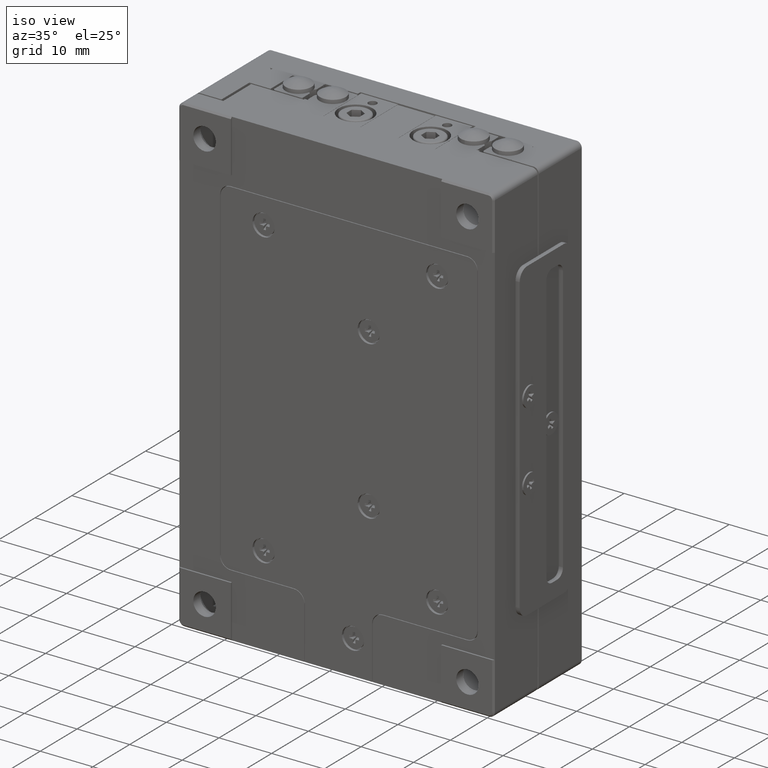
[diagram: clean part render]
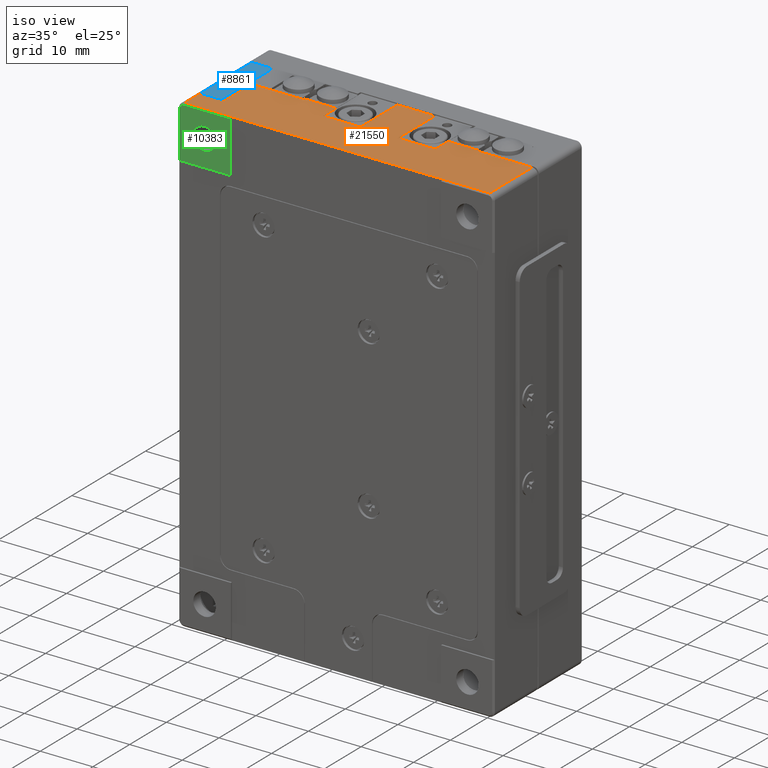
[diagram: same view with three faces highlighted in distinct colors, each labeled with its STEP entity id]
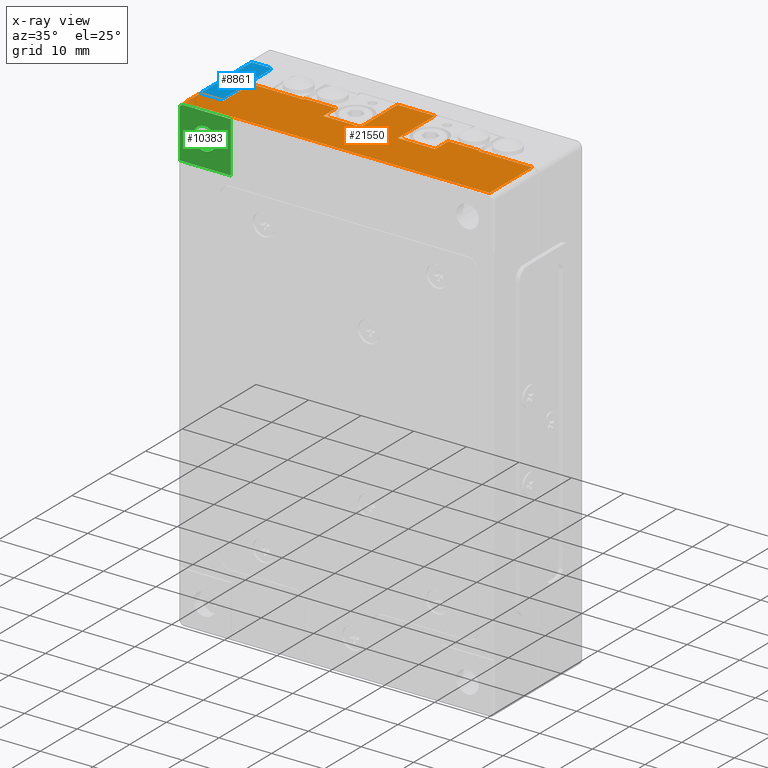
[diagram: x-ray of the same camera — body ghosted, the three highlighted faces saturated]
A machine part, iso view with three faces highlighted in distinct colors.
The next image is the same camera in x-ray (body ghosted, the three faces saturated) — at least one of them is partly hidden behind the body in this view.
Their STEP definitions:

[orange] entity #21550 — the highlighted planar face has unit normal (0, 0, -1).
#41 = DIRECTION ( 'NONE',  ( 0.000000000000000000, 1.000000000000000000, 0.000000000000000000 ) ) ;
#58 = VERTEX_POINT ( 'NONE', #18189 ) ;
#564 = LINE ( 'NONE', #9706, #5444 ) ;
#570 = LINE ( 'NONE', #10872, #5280 ) ;
#799 = VECTOR ( 'NONE', #5479, 1000.000000000000000 ) ;
#1006 = CARTESIAN_POINT ( 'NONE',  ( 48.80000000000000426, 11.59999999999999964, 0.000000000000000000 ) ) ;
#1145 = CARTESIAN_POINT ( 'NONE',  ( 59.00000000000000000, 0.000000000000000000, 0.000000000000000000 ) ) ;
#1394 = CARTESIAN_POINT ( 'NONE',  ( 15.50000000000000000, 11.59999999999999964, 0.000000000000000000 ) ) ;
#1398 = ORIENTED_EDGE ( 'NONE', *, *, #16340, .F. ) ;
#1499 = CARTESIAN_POINT ( 'NONE',  ( 42.79999999999999716, 11.90000000000000036, 0.000000000000000000 ) ) ;
#1723 = VERTEX_POINT ( 'NONE', #20619 ) ;
#1796 = CARTESIAN_POINT ( 'NONE',  ( 42.79999999999999716, 8.400000000000000355, -8.694992273946199858E-16 ) ) ;
#1806 = ORIENTED_EDGE ( 'NONE', *, *, #15400, .F. ) ;
#2213 = CARTESIAN_POINT ( 'NONE',  ( 0.000000000000000000, 0.000000000000000000, 0.000000000000000000 ) ) ;
#2290 = VERTEX_POINT ( 'NONE', #10191 ) ;
#2571 = ORIENTED_EDGE ( 'NONE', *, *, #11701, .T. ) ;
#2604 = ORIENTED_EDGE ( 'NONE', *, *, #11564, .T. ) ;
#2782 = VERTEX_POINT ( 'NONE', #11103 ) ;
#2842 = EDGE_CURVE ( 'NONE', #19836, #23941, #26121, .T. ) ;
#2955 = VECTOR ( 'NONE', #24347, 1000.000000000000000 ) ;
#3142 = EDGE_CURVE ( 'NONE', #7183, #5017, #21053, .T. ) ;
#3312 = ORIENTED_EDGE ( 'NONE', *, *, #25575, .T. ) ;
#3602 = LINE ( 'NONE', #1499, #5015 ) ;
#4140 = CARTESIAN_POINT ( 'NONE',  ( 48.80000000000000426, 11.59999999999999964, 0.000000000000000000 ) ) ;
#4167 = FACE_OUTER_BOUND ( 'NONE', #15299, .T. ) ;
#4395 = ORIENTED_EDGE ( 'NONE', *, *, #4515, .T. ) ;
#4416 = DIRECTION ( 'NONE',  ( 0.000000000000000000, 1.000000000000000000, 0.000000000000000000 ) ) ;
#4515 = EDGE_CURVE ( 'NONE', #58, #10244, #20656, .T. ) ;
#4802 = VECTOR ( 'NONE', #26941, 1000.000000000000000 ) ;
#5015 = VECTOR ( 'NONE', #24972, 1000.000000000000000 ) ;
#5017 = VERTEX_POINT ( 'NONE', #16515 ) ;
#5107 = CARTESIAN_POINT ( 'NONE',  ( 21.50000000000000000, 8.400000000000000355, 7.204041220907209947E-16 ) ) ;
#5280 = VECTOR ( 'NONE', #11422, 1000.000000000000000 ) ;
#5444 = VECTOR ( 'NONE', #7593, 1000.000000000000000 ) ;
#5479 = DIRECTION ( 'NONE',  ( 1.000000000000000000, 0.000000000000000000, -2.239300492232875162E-16 ) ) ;
#5503 = CARTESIAN_POINT ( 'NONE',  ( 15.50000000000000000, 11.90000000000000036, 0.000000000000000000 ) ) ;
#5521 = DIRECTION ( 'NONE',  ( 0.000000000000000000, -1.000000000000000000, 0.000000000000000000 ) ) ;
#5611 = VECTOR ( 'NONE', #5521, 1000.000000000000000 ) ;
#5737 = VECTOR ( 'NONE', #25130, 1000.000000000000000 ) ;
#5835 = CARTESIAN_POINT ( 'NONE',  ( 21.50000000000000000, 8.400000000000000355, 7.204041220907209947E-16 ) ) ;
#6078 = AXIS2_PLACEMENT_3D ( 'NONE', #2213, #14880, #16994 ) ;
#6705 = PLANE ( 'NONE',  #6078 ) ;
#7021 = CARTESIAN_POINT ( 'NONE',  ( 59.00000000000000000, 11.59999999999999964, 0.000000000000000000 ) ) ;
#7069 = EDGE_CURVE ( 'NONE', #10244, #10368, #564, .T. ) ;
#7183 = VERTEX_POINT ( 'NONE', #16453 ) ;
#7342 = VECTOR ( 'NONE', #26106, 1000.000000000000000 ) ;
#7567 = EDGE_CURVE ( 'NONE', #19516, #22170, #24293, .T. ) ;
#7593 = DIRECTION ( 'NONE',  ( -1.000000000000000000, 0.000000000000000000, 0.000000000000000000 ) ) ;
#7814 = VERTEX_POINT ( 'NONE', #16829 ) ;
#7933 = LINE ( 'NONE', #5835, #12370 ) ;
#8321 = CARTESIAN_POINT ( 'NONE',  ( 21.50000000000000000, 18.39999999999999858, 0.000000000000000000 ) ) ;
#8750 = LINE ( 'NONE', #25764, #27241 ) ;
#8953 = CARTESIAN_POINT ( 'NONE',  ( 0.9999999999854640720, 4.000000000000000000, 2.709638069475775509E-12 ) ) ;
#9342 = CARTESIAN_POINT ( 'NONE',  ( 1.000000000000000000, -0.2999999999999999889, 0.000000000000000000 ) ) ;
#9663 = CARTESIAN_POINT ( 'NONE',  ( 60.00000000000000000, 0.000000000000000000, 0.000000000000000000 ) ) ;
#9706 = CARTESIAN_POINT ( 'NONE',  ( 7.129999999999999893, 11.59999999999999964, 0.000000000000000000 ) ) ;
#9981 = DIRECTION ( 'NONE',  ( -1.734723475976805201E-14, -1.000000000000000000, 0.000000000000000000 ) ) ;
#10014 = CARTESIAN_POINT ( 'NONE',  ( 1.000000000000000000, -5.258380536554699660E-15, 0.000000000000000000 ) ) ;
#10191 = CARTESIAN_POINT ( 'NONE',  ( 35.70000000000000284, 8.400000000000000355, 0.000000000000000000 ) ) ;
#10244 = VERTEX_POINT ( 'NONE', #20961 ) ;
#10320 = LINE ( 'NONE', #8321, #12398 ) ;
#10368 = VERTEX_POINT ( 'NONE', #10849 ) ;
#10849 = CARTESIAN_POINT ( 'NONE',  ( 5.549999999985169907, 11.59999999999999964, 2.661065812148420063E-12 ) ) ;
#10872 = CARTESIAN_POINT ( 'NONE',  ( 59.00000000000000000, -1.509929076399594927E-28, 0.000000000000000000 ) ) ;
#10940 = ORIENTED_EDGE ( 'NONE', *, *, #7567, .T. ) ;
#11084 = EDGE_CURVE ( 'NONE', #24372, #5017, #3602, .T. ) ;
#11103 = CARTESIAN_POINT ( 'NONE',  ( 21.50000000000000000, 11.90000000000000036, 7.204041220907209947E-16 ) ) ;
#11142 = CARTESIAN_POINT ( 'NONE',  ( 48.80000000000000426, 11.90000000000000036, 0.000000000000000000 ) ) ;
#11144 = VERTEX_POINT ( 'NONE', #4140 ) ;
#11422 = DIRECTION ( 'NONE',  ( 1.000000000000000000, 0.000000000000000000, 0.000000000000000000 ) ) ;
#11532 = VECTOR ( 'NONE', #41, 1000.000000000000000 ) ;
#11564 = EDGE_CURVE ( 'NONE', #24061, #19516, #8750, .T. ) ;
#11645 = EDGE_CURVE ( 'NONE', #11144, #24372, #14947, .T. ) ;
#11701 = EDGE_CURVE ( 'NONE', #13117, #11144, #20268, .T. ) ;
#12293 = VECTOR ( 'NONE', #24154, 1000.000000000000000 ) ;
#12323 = CARTESIAN_POINT ( 'NONE',  ( 5.549999999985169907, 4.000000000000000000, 2.661065812148420063E-12 ) ) ;
#12370 = VECTOR ( 'NONE', #25235, 1000.000000000000000 ) ;
#12398 = VECTOR ( 'NONE', #25470, 1000.000000000000000 ) ;
#12796 = EDGE_CURVE ( 'NONE', #22170, #22611, #570, .T. ) ;
#12907 = VERTEX_POINT ( 'NONE', #17038 ) ;
#12968 = ORIENTED_EDGE ( 'NONE', *, *, #22200, .T. ) ;
#13117 = VERTEX_POINT ( 'NONE', #7021 ) ;
#13448 = VECTOR ( 'NONE', #9981, 1000.000000000000000 ) ;
#13655 = LINE ( 'NONE', #27010, #799 ) ;
#14089 = ORIENTED_EDGE ( 'NONE', *, *, #20518, .F. ) ;
#14394 = CARTESIAN_POINT ( 'NONE',  ( 28.60000000000000142, 8.400000000000000355, -6.245698675651510700E-16 ) ) ;
#14874 = ORIENTED_EDGE ( 'NONE', *, *, #3142, .F. ) ;
#14880 = DIRECTION ( 'NONE',  ( 0.000000000000000000, 0.000000000000000000, -1.000000000000000000 ) ) ;
#14947 = LINE ( 'NONE', #19303, #11532 ) ;
#15106 = LINE ( 'NONE', #18916, #15273 ) ;
#15246 = LINE ( 'NONE', #5503, #27763 ) ;
#15273 = VECTOR ( 'NONE', #4416, 1000.000000000000000 ) ;
#15299 = EDGE_LOOP ( 'NONE', ( #1398, #16687, #3312, #26496, #14089, #25027, #25840, #4395, #18701, #1806, #19783, #12968, #2604, #10940, #16490, #26839, #2571, #25777, #22093, #14874 ) ) ;
#15308 = CARTESIAN_POINT ( 'NONE',  ( 28.60000000000000142, 8.400000000000000355, -6.245698675651510700E-16 ) ) ;
#15400 = EDGE_CURVE ( 'NONE', #17395, #10368, #26949, .T. ) ;
#15806 = LINE ( 'NONE', #9342, #5611 ) ;
#16340 = EDGE_CURVE ( 'NONE', #2290, #7183, #13655, .T. ) ;
#16453 = CARTESIAN_POINT ( 'NONE',  ( 42.79999999999999716, 8.400000000000000355, -8.694992273946199858E-16 ) ) ;
#16490 = ORIENTED_EDGE ( 'NONE', *, *, #12796, .T. ) ;
#16515 = CARTESIAN_POINT ( 'NONE',  ( 42.79999999999999716, 11.90000000000000036, -8.694992273946199858E-16 ) ) ;
#16687 = ORIENTED_EDGE ( 'NONE', *, *, #16913, .T. ) ;
#16829 = CARTESIAN_POINT ( 'NONE',  ( 21.50000000000000000, 8.400000000000000355, 0.000000000000000000 ) ) ;
#16913 = EDGE_CURVE ( 'NONE', #2290, #1723, #15106, .T. ) ;
#16994 = DIRECTION ( 'NONE',  ( 0.000000000000000000, -1.000000000000000000, 0.000000000000000000 ) ) ;
#17038 = CARTESIAN_POINT ( 'NONE',  ( 0.9999999999854640720, 4.000000000000000000, 2.709638069475775509E-12 ) ) ;
#17395 = VERTEX_POINT ( 'NONE', #26397 ) ;
#18189 = CARTESIAN_POINT ( 'NONE',  ( 15.50000000000000000, 11.90000000000000036, 0.000000000000000000 ) ) ;
#18249 = VECTOR ( 'NONE', #24903, 1000.000000000000000 ) ;
#18579 = CARTESIAN_POINT ( 'NONE',  ( 59.00000000000000000, 11.59999999999999964, 0.000000000000000000 ) ) ;
#18701 = ORIENTED_EDGE ( 'NONE', *, *, #7069, .T. ) ;
#18916 = CARTESIAN_POINT ( 'NONE',  ( 35.70000000000000284, 8.400000000000000355, 7.204041220907209947E-16 ) ) ;
#19303 = CARTESIAN_POINT ( 'NONE',  ( 48.80000000000000426, 11.90000000000000036, 0.000000000000000000 ) ) ;
#19362 = LINE ( 'NONE', #8953, #7342 ) ;
#19516 = VERTEX_POINT ( 'NONE', #21423 ) ;
#19723 = CARTESIAN_POINT ( 'NONE',  ( 28.60000000000000142, 18.39999999999999858, -6.245698675651510700E-16 ) ) ;
#19783 = ORIENTED_EDGE ( 'NONE', *, *, #26532, .F. ) ;
#19836 = VERTEX_POINT ( 'NONE', #14394 ) ;
#19849 = EDGE_CURVE ( 'NONE', #22611, #13117, #20823, .T. ) ;
#20268 = LINE ( 'NONE', #1006, #2955 ) ;
#20518 = EDGE_CURVE ( 'NONE', #7814, #19836, #24808, .T. ) ;
#20619 = CARTESIAN_POINT ( 'NONE',  ( 35.70000000000000284, 18.39999999999999858, 7.204041220907209947E-16 ) ) ;
#20656 = LINE ( 'NONE', #1394, #13448 ) ;
#20823 = LINE ( 'NONE', #18579, #18249 ) ;
#20885 = EDGE_CURVE ( 'NONE', #2782, #58, #15246, .T. ) ;
#20961 = CARTESIAN_POINT ( 'NONE',  ( 15.50000000000000000, 11.59999999999999964, 0.000000000000000000 ) ) ;
#21053 = LINE ( 'NONE', #1796, #5737 ) ;
#21423 = CARTESIAN_POINT ( 'NONE',  ( 10.00000000000000000, 0.000000000000000000, 0.000000000000000000 ) ) ;
#21550 = ADVANCED_FACE ( 'NONE', ( #4167 ), #6705, .F. ) ;
#22093 = ORIENTED_EDGE ( 'NONE', *, *, #11084, .T. ) ;
#22170 = VERTEX_POINT ( 'NONE', #26084 ) ;
#22200 = EDGE_CURVE ( 'NONE', #12907, #24061, #15806, .T. ) ;
#22611 = VERTEX_POINT ( 'NONE', #1145 ) ;
#22853 = DIRECTION ( 'NONE',  ( 0.000000000000000000, 1.000000000000000000, 0.000000000000000000 ) ) ;
#23514 = DIRECTION ( 'NONE',  ( 1.000000000000000000, 0.000000000000000000, 0.000000000000000000 ) ) ;
#23941 = VERTEX_POINT ( 'NONE', #19723 ) ;
#24061 = VERTEX_POINT ( 'NONE', #10014 ) ;
#24154 = DIRECTION ( 'NONE',  ( 0.000000000000000000, 1.000000000000000000, 0.000000000000000000 ) ) ;
#24293 = LINE ( 'NONE', #9663, #26608 ) ;
#24347 = DIRECTION ( 'NONE',  ( -1.000000000000000000, 0.000000000000000000, 0.000000000000000000 ) ) ;
#24372 = VERTEX_POINT ( 'NONE', #11142 ) ;
#24575 = DIRECTION ( 'NONE',  ( 1.000000000000000000, 0.000000000000000000, 0.000000000000000000 ) ) ;
#24808 = LINE ( 'NONE', #5107, #4802 ) ;
#24903 = DIRECTION ( 'NONE',  ( 0.000000000000000000, 1.000000000000000000, 0.000000000000000000 ) ) ;
#24972 = DIRECTION ( 'NONE',  ( -1.000000000000000000, 0.000000000000000000, 0.000000000000000000 ) ) ;
#25023 = EDGE_CURVE ( 'NONE', #7814, #2782, #7933, .T. ) ;
#25027 = ORIENTED_EDGE ( 'NONE', *, *, #25023, .T. ) ;
#25130 = DIRECTION ( 'NONE',  ( 0.000000000000000000, 1.000000000000000000, 0.000000000000000000 ) ) ;
#25235 = DIRECTION ( 'NONE',  ( 0.000000000000000000, 1.000000000000000000, 0.000000000000000000 ) ) ;
#25470 = DIRECTION ( 'NONE',  ( -1.000000000000000000, 0.000000000000000000, 0.000000000000000000 ) ) ;
#25575 = EDGE_CURVE ( 'NONE', #1723, #23941, #10320, .T. ) ;
#25764 = CARTESIAN_POINT ( 'NONE',  ( 10.00000000000000000, -1.509929076399594927E-28, 0.000000000000000000 ) ) ;
#25777 = ORIENTED_EDGE ( 'NONE', *, *, #11645, .T. ) ;
#25840 = ORIENTED_EDGE ( 'NONE', *, *, #20885, .T. ) ;
#26084 = CARTESIAN_POINT ( 'NONE',  ( 50.00000000000000000, 0.000000000000000000, -1.224646799147351876E-15 ) ) ;
#26106 = DIRECTION ( 'NONE',  ( 1.000000000000000000, 0.000000000000000000, -1.067522139062720012E-14 ) ) ;
#26121 = LINE ( 'NONE', #15308, #12293 ) ;
#26397 = CARTESIAN_POINT ( 'NONE',  ( 5.549999999985169907, 4.000000000000000000, 2.661065812148420063E-12 ) ) ;
#26496 = ORIENTED_EDGE ( 'NONE', *, *, #2842, .F. ) ;
#26532 = EDGE_CURVE ( 'NONE', #12907, #17395, #19362, .T. ) ;
#26608 = VECTOR ( 'NONE', #24575, 1000.000000000000000 ) ;
#26612 = DIRECTION ( 'NONE',  ( -1.000000000000000000, 0.000000000000000000, 0.000000000000000000 ) ) ;
#26804 = VECTOR ( 'NONE', #22853, 1000.000000000000000 ) ;
#26839 = ORIENTED_EDGE ( 'NONE', *, *, #19849, .T. ) ;
#26941 = DIRECTION ( 'NONE',  ( 1.000000000000000000, 0.000000000000000000, -1.894329562895594898E-16 ) ) ;
#26949 = LINE ( 'NONE', #12323, #26804 ) ;
#27010 = CARTESIAN_POINT ( 'NONE',  ( 35.70000000000000284, 8.400000000000000355, 7.204041220907209947E-16 ) ) ;
#27241 = VECTOR ( 'NONE', #23514, 1000.000000000000000 ) ;
#27763 = VECTOR ( 'NONE', #26612, 1000.000000000000000 ) ;

[blue] entity #8861 — the highlighted planar face has unit normal (0, -0, 1).
#905 = ORIENTED_EDGE ( 'NONE', *, *, #11643, .F. ) ;
#1413 = PLANE ( 'NONE',  #24015 ) ;
#2669 = LINE ( 'NONE', #24029, #23343 ) ;
#5199 = FACE_OUTER_BOUND ( 'NONE', #11716, .T. ) ;
#5840 = EDGE_CURVE ( 'NONE', #15778, #22101, #12543, .T. ) ;
#6185 = VECTOR ( 'NONE', #18886, 1000.000000000000000 ) ;
#7458 = CARTESIAN_POINT ( 'NONE',  ( 56.25000000000000000, -30.00000000000000000, 6.924999999999999822 ) ) ;
#7640 = VERTEX_POINT ( 'NONE', #27111 ) ;
#8488 = CARTESIAN_POINT ( 'NONE',  ( 56.25000000000000000, -25.00000000000000000, 6.924999999999999822 ) ) ;
#8861 = ADVANCED_FACE ( 'NONE', ( #5199 ), #1413, .T. ) ;
#10067 = VERTEX_POINT ( 'NONE', #15521 ) ;
#10619 = VECTOR ( 'NONE', #17915, 1000.000000000000114 ) ;
#11133 = DIRECTION ( 'NONE',  ( 0.000000000000000000, 1.000000000000000000, 0.000000000000000000 ) ) ;
#11204 = CARTESIAN_POINT ( 'NONE',  ( 56.25000000000000000, -29.00000000000000000, -6.975000000000000533 ) ) ;
#11643 = EDGE_CURVE ( 'NONE', #10067, #27428, #27767, .T. ) ;
#11716 = EDGE_LOOP ( 'NONE', ( #17556, #24932, #25066, #905, #24341 ) ) ;
#11738 = CARTESIAN_POINT ( 'NONE',  ( 56.25000000000000000, -29.00000000000000000, 6.924999999999999822 ) ) ;
#11841 = DIRECTION ( 'NONE',  ( 0.000000000000000000, 1.000000000000000000, 0.000000000000000000 ) ) ;
#12390 = VECTOR ( 'NONE', #20663, 1000.000000000000000 ) ;
#12543 = LINE ( 'NONE', #22631, #12390 ) ;
#14669 = LINE ( 'NONE', #27749, #6185 ) ;
#15521 = CARTESIAN_POINT ( 'NONE',  ( 56.25000000000000000, -25.00000000000000000, 6.424999999999999822 ) ) ;
#15778 = VERTEX_POINT ( 'NONE', #11738 ) ;
#16038 = DIRECTION ( 'NONE',  ( 1.000000000000000000, 0.000000000000000000, 0.000000000000000000 ) ) ;
#16045 = EDGE_CURVE ( 'NONE', #15778, #7640, #14669, .T. ) ;
#17066 = DIRECTION ( 'NONE',  ( 0.000000000000000000, 0.000000000000000000, -1.000000000000000000 ) ) ;
#17556 = ORIENTED_EDGE ( 'NONE', *, *, #16045, .F. ) ;
#17915 = DIRECTION ( 'NONE',  ( 0.000000000000000000, -0.7071067811865474617, 0.7071067811865474617 ) ) ;
#18128 = EDGE_CURVE ( 'NONE', #22101, #27428, #2669, .T. ) ;
#18886 = DIRECTION ( 'NONE',  ( 0.000000000000000000, 1.000000000000000000, 0.000000000000000000 ) ) ;
#19293 = CARTESIAN_POINT ( 'NONE',  ( 56.25000000000000000, -25.00000000000000000, -6.975000000000000533 ) ) ;
#19572 = VECTOR ( 'NONE', #17066, 1000.000000000000000 ) ;
#20574 = CARTESIAN_POINT ( 'NONE',  ( 56.25000000000000000, -27.75000000000000000, 9.175000000000000711 ) ) ;
#20663 = DIRECTION ( 'NONE',  ( 0.000000000000000000, 0.000000000000000000, -1.000000000000000000 ) ) ;
#22101 = VERTEX_POINT ( 'NONE', #11204 ) ;
#22631 = CARTESIAN_POINT ( 'NONE',  ( 56.25000000000000000, -29.00000000000000000, -6.975000000000000533 ) ) ;
#23343 = VECTOR ( 'NONE', #11133, 1000.000000000000000 ) ;
#24015 = AXIS2_PLACEMENT_3D ( 'NONE', #7458, #16038, #11841 ) ;
#24029 = CARTESIAN_POINT ( 'NONE',  ( 56.25000000000000000, -30.00000000000000000, -6.975000000000000533 ) ) ;
#24341 = ORIENTED_EDGE ( 'NONE', *, *, #27164, .T. ) ;
#24932 = ORIENTED_EDGE ( 'NONE', *, *, #5840, .T. ) ;
#25066 = ORIENTED_EDGE ( 'NONE', *, *, #18128, .T. ) ;
#26346 = LINE ( 'NONE', #20574, #10619 ) ;
#27111 = CARTESIAN_POINT ( 'NONE',  ( 56.25000000000000000, -25.50000000000000000, 6.924999999999999822 ) ) ;
#27164 = EDGE_CURVE ( 'NONE', #10067, #7640, #26346, .T. ) ;
#27428 = VERTEX_POINT ( 'NONE', #19293 ) ;
#27749 = CARTESIAN_POINT ( 'NONE',  ( 56.25000000000000000, -30.00000000000000000, 6.924999999999999822 ) ) ;
#27767 = LINE ( 'NONE', #8488, #19572 ) ;

[green] entity #10383 — the highlighted planar face has unit normal (0, -1, 0).
#138 = CARTESIAN_POINT ( 'NONE',  ( 0.000000000000000000, -0.2999999999999999889, 0.000000000000000000 ) ) ;
#723 = CARTESIAN_POINT ( 'NONE',  ( 0.3000000000000084821, -0.2999999999999999889, 0.000000000000000000 ) ) ;
#2099 = AXIS2_PLACEMENT_3D ( 'NONE', #7328, #2700, #17890 ) ;
#2264 = VERTEX_POINT ( 'NONE', #23259 ) ;
#2700 = DIRECTION ( 'NONE',  ( 0.000000000000000000, -1.000000000000000000, 0.000000000000000000 ) ) ;
#2811 = CARTESIAN_POINT ( 'NONE',  ( 10.00000000000000000, -0.2999999999999999889, -0.3000000000000084821 ) ) ;
#3399 = ORIENTED_EDGE ( 'NONE', *, *, #19062, .T. ) ;
#3971 = CARTESIAN_POINT ( 'NONE',  ( 5.000000000000000000, -0.2999999999999999889, -5.000000000000000000 ) ) ;
#4600 = DIRECTION ( 'NONE',  ( 0.000000000000000000, 0.000000000000000000, 1.000000000000000000 ) ) ;
#4700 = EDGE_CURVE ( 'NONE', #19150, #27603, #14002, .T. ) ;
#4708 = DIRECTION ( 'NONE',  ( 1.000000000000000000, 0.000000000000000000, 0.000000000000000000 ) ) ;
#5159 = EDGE_LOOP ( 'NONE', ( #15555, #3399 ) ) ;
#5430 = AXIS2_PLACEMENT_3D ( 'NONE', #138, #9126, #8718 ) ;
#6598 = EDGE_CURVE ( 'NONE', #27603, #15289, #26100, .T. ) ;
#7015 = PLANE ( 'NONE',  #5430 ) ;
#7328 = CARTESIAN_POINT ( 'NONE',  ( 1.000000000000000000, -0.2999999999999999889, -1.000000000000000000 ) ) ;
#7762 = DIRECTION ( 'NONE',  ( 0.000000000000000000, 0.000000000000000000, 1.000000000000000000 ) ) ;
#7952 = EDGE_CURVE ( 'NONE', #21971, #19150, #19630, .T. ) ;
#8718 = DIRECTION ( 'NONE',  ( 0.000000000000000000, 0.000000000000000000, -1.000000000000000000 ) ) ;
#9126 = DIRECTION ( 'NONE',  ( 0.000000000000000000, -1.000000000000000000, 0.000000000000000000 ) ) ;
#9769 = CARTESIAN_POINT ( 'NONE',  ( 10.00000000000000000, -0.2999999999999999889, -10.00000000000000000 ) ) ;
#10383 = ADVANCED_FACE ( 'NONE', ( #10985, #19687 ), #7015, .T. ) ;
#10985 = FACE_OUTER_BOUND ( 'NONE', #25839, .T. ) ;
#11209 = DIRECTION ( 'NONE',  ( 0.000000000000000000, 1.000000000000000000, 0.000000000000000000 ) ) ;
#11222 = CARTESIAN_POINT ( 'NONE',  ( 1.000000000000000000, -0.2999999999999999889, -0.3000000000000084821 ) ) ;
#11715 = EDGE_CURVE ( 'NONE', #15189, #21971, #26745, .T. ) ;
#11789 = EDGE_CURVE ( 'NONE', #15289, #15189, #14238, .T. ) ;
#14002 = LINE ( 'NONE', #22431, #26457 ) ;
#14208 = AXIS2_PLACEMENT_3D ( 'NONE', #3971, #14814, #7762 ) ;
#14238 = CIRCLE ( 'NONE', #2099, 0.6999999999999909628 ) ;
#14335 = AXIS2_PLACEMENT_3D ( 'NONE', #19756, #11209, #21720 ) ;
#14814 = DIRECTION ( 'NONE',  ( 0.000000000000000000, 1.000000000000000000, 0.000000000000000000 ) ) ;
#15127 = ORIENTED_EDGE ( 'NONE', *, *, #11789, .T. ) ;
#15189 = VERTEX_POINT ( 'NONE', #18940 ) ;
#15285 = CARTESIAN_POINT ( 'NONE',  ( 1.000000000000000000, -0.2999999999999999889, -0.3000000000000084821 ) ) ;
#15289 = VERTEX_POINT ( 'NONE', #15285 ) ;
#15413 = DIRECTION ( 'NONE',  ( -1.000000000000000000, 0.000000000000000000, 0.000000000000000000 ) ) ;
#15555 = ORIENTED_EDGE ( 'NONE', *, *, #27297, .T. ) ;
#15798 = VERTEX_POINT ( 'NONE', #16073 ) ;
#16073 = CARTESIAN_POINT ( 'NONE',  ( 5.000000000000000000, -0.2999999999999999889, -2.850000000000000089 ) ) ;
#16736 = VECTOR ( 'NONE', #15413, 1000.000000000000000 ) ;
#16956 = CARTESIAN_POINT ( 'NONE',  ( 0.3000000000000084821, -0.2999999999999999889, -10.00000000000000000 ) ) ;
#17248 = ORIENTED_EDGE ( 'NONE', *, *, #4700, .T. ) ;
#17356 = VECTOR ( 'NONE', #17740, 1000.000000000000000 ) ;
#17740 = DIRECTION ( 'NONE',  ( 0.000000000000000000, 0.000000000000000000, -1.000000000000000000 ) ) ;
#17890 = DIRECTION ( 'NONE',  ( 0.000000000000000000, 0.000000000000000000, -1.000000000000000000 ) ) ;
#18940 = CARTESIAN_POINT ( 'NONE',  ( 0.3000000000000084821, -0.2999999999999999889, -1.000000000000000000 ) ) ;
#19062 = EDGE_CURVE ( 'NONE', #2264, #15798, #26447, .T. ) ;
#19150 = VERTEX_POINT ( 'NONE', #9769 ) ;
#19630 = LINE ( 'NONE', #23977, #26183 ) ;
#19687 = FACE_BOUND ( 'NONE', #5159, .T. ) ;
#19756 = CARTESIAN_POINT ( 'NONE',  ( 5.000000000000000000, -0.2999999999999999889, -5.000000000000000000 ) ) ;
#20502 = ORIENTED_EDGE ( 'NONE', *, *, #7952, .T. ) ;
#21060 = ORIENTED_EDGE ( 'NONE', *, *, #11715, .T. ) ;
#21079 = ORIENTED_EDGE ( 'NONE', *, *, #6598, .T. ) ;
#21720 = DIRECTION ( 'NONE',  ( 0.000000000000000000, 0.000000000000000000, 1.000000000000000000 ) ) ;
#21971 = VERTEX_POINT ( 'NONE', #16956 ) ;
#22431 = CARTESIAN_POINT ( 'NONE',  ( 10.00000000000000000, -0.2999999999999999889, -10.00000000000000000 ) ) ;
#23259 = CARTESIAN_POINT ( 'NONE',  ( 5.000000000000000000, -0.2999999999999999889, -7.150000000000000355 ) ) ;
#23977 = CARTESIAN_POINT ( 'NONE',  ( 3.061616997868384620E-15, -0.2999999999999999889, -10.00000000000000000 ) ) ;
#25839 = EDGE_LOOP ( 'NONE', ( #17248, #21079, #15127, #21060, #20502 ) ) ;
#26100 = LINE ( 'NONE', #11222, #16736 ) ;
#26183 = VECTOR ( 'NONE', #4708, 1000.000000000000000 ) ;
#26307 = CIRCLE ( 'NONE', #14208, 2.149999999999999911 ) ;
#26447 = CIRCLE ( 'NONE', #14335, 2.149999999999999911 ) ;
#26457 = VECTOR ( 'NONE', #4600, 1000.000000000000000 ) ;
#26745 = LINE ( 'NONE', #723, #17356 ) ;
#27297 = EDGE_CURVE ( 'NONE', #15798, #2264, #26307, .T. ) ;
#27603 = VERTEX_POINT ( 'NONE', #2811 ) ;